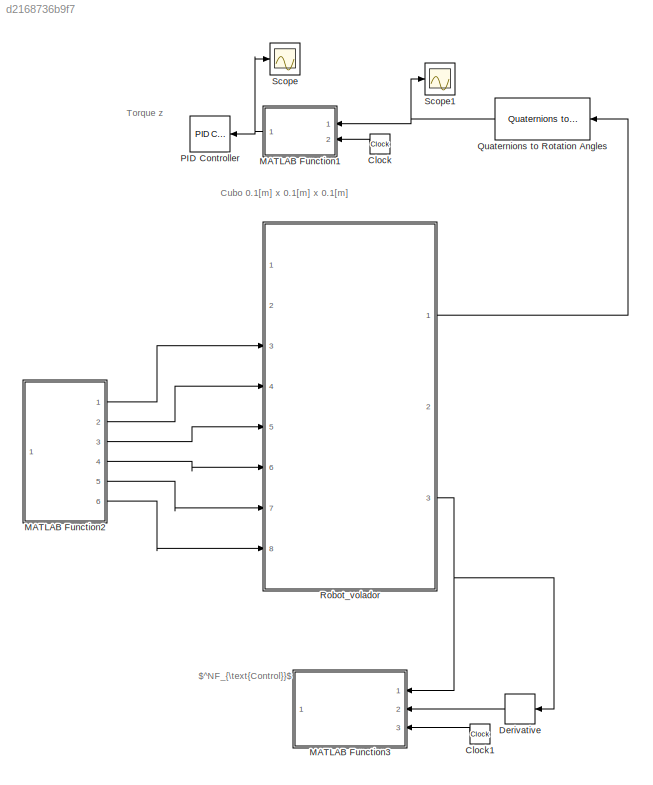
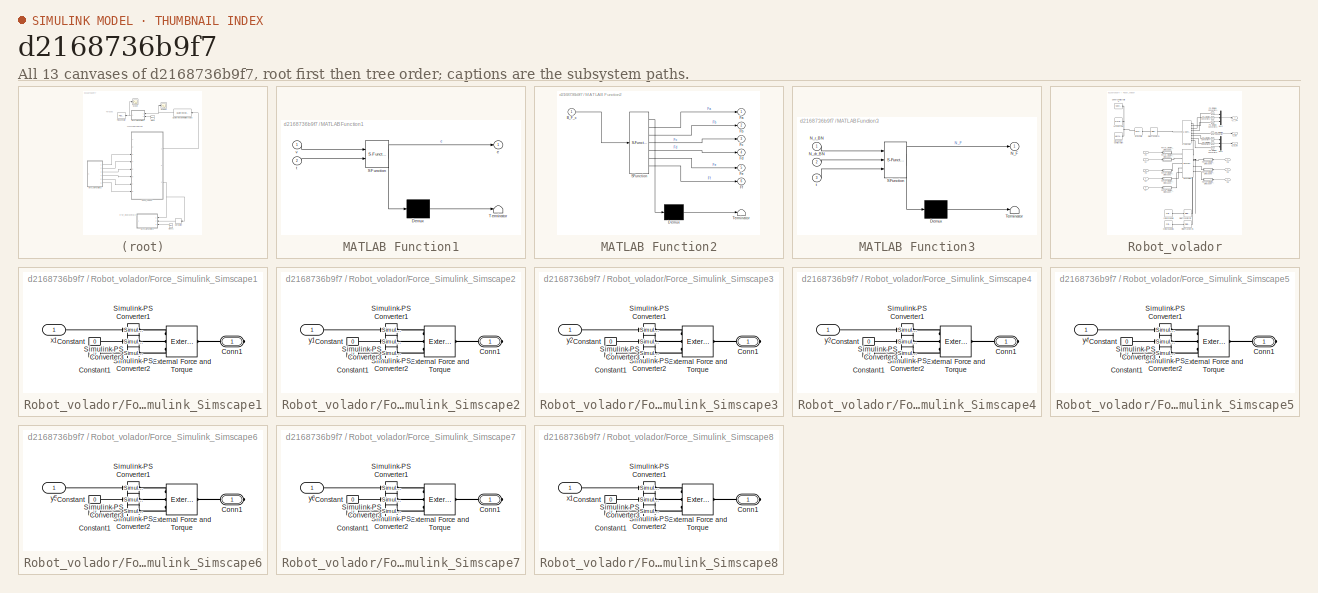
[diagram: thumbnail index - all 13 canvases of the model, root first then tree order]
MODEL slx_d2168736b9f7
KIND model
CONFIG AbsTol = 1e-3
CONFIG EnableMultiTasking = on
CONFIG FixedStep = 0.001
CONFIG MaxStep = auto
CONFIG MinStep = auto
CONFIG RelTol = 1e-3
CONFIG SampleTimeConstraint = Unconstrained
CONFIG SolverName = ode4
CONFIG StartTime = 0.0
CONFIG StopTime = 30
BLOCK [Clock] Clock
BLOCK [Clock] Clock1
BLOCK [Derivative] Derivative
BLOCK [SubSystem] MATLAB Function1
  ErrorFcn = Stateflow.Translate.translate
  PermitHierarchicalResolution = ExplicitOnly
  Ports = [2, 1]
  RequestExecContextInheritance = off
  SFBlockType = MATLAB Function
  TreatAsAtomicUnit = on
BLOCK [Demux] MATLAB Function1/ Demux 
  Outputs = 1
  Ports = [1, 1]
BLOCK [S-Function] MATLAB Function1/ SFunction 
  EnableBusSupport = on
  FunctionName = sf_sfun
  PortCounts = [2 2]
  Ports = [2, 2]
  SFcnIsStateOwnerBlock = off
  SFunctionDeploymentMode = off
  Tag = Stateflow S-Function 1
BLOCK [Terminator] MATLAB Function1/ Terminator 
BLOCK [Outport] MATLAB Function1/e
BLOCK [Inport] MATLAB Function1/t
  Port = 2
BLOCK [Inport] MATLAB Function1/v
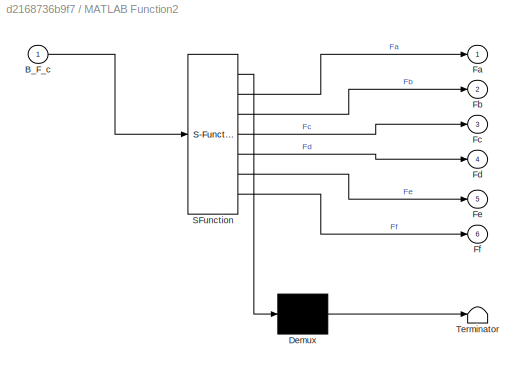
BLOCK [SubSystem] MATLAB Function2
  ErrorFcn = Stateflow.Translate.translate
  PermitHierarchicalResolution = ExplicitOnly
  Ports = [1, 6]
  RequestExecContextInheritance = off
  SFBlockType = MATLAB Function
  TreatAsAtomicUnit = on
BLOCK [Demux] MATLAB Function2/ Demux 
  Outputs = 1
  Ports = [1, 1]
BLOCK [S-Function] MATLAB Function2/ SFunction 
  EnableBusSupport = on
  FunctionName = sf_sfun
  PortCounts = [1 7]
  Ports = [1, 7]
  SFcnIsStateOwnerBlock = off
  SFunctionDeploymentMode = off
  Tag = Stateflow S-Function 3
BLOCK [Terminator] MATLAB Function2/ Terminator 
BLOCK [Inport] MATLAB Function2/B_F_c
BLOCK [Outport] MATLAB Function2/Fa
BLOCK [Outport] MATLAB Function2/Fb
  Port = 2
BLOCK [Outport] MATLAB Function2/Fc
  Port = 3
BLOCK [Outport] MATLAB Function2/Fd
  Port = 4
BLOCK [Outport] MATLAB Function2/Fe
  Port = 5
BLOCK [Outport] MATLAB Function2/Ff
  Port = 6
BLOCK [SubSystem] MATLAB Function3
  ErrorFcn = Stateflow.Translate.translate
  PermitHierarchicalResolution = ExplicitOnly
  Ports = [3, 1]
  RequestExecContextInheritance = off
  SFBlockType = MATLAB Function
  TreatAsAtomicUnit = on
BLOCK [Demux] MATLAB Function3/ Demux 
  Outputs = 1
  Ports = [1, 1]
BLOCK [S-Function] MATLAB Function3/ SFunction 
  EnableBusSupport = on
  FunctionName = sf_sfun
  PortCounts = [3 2]
  Ports = [3, 2]
  SFcnIsStateOwnerBlock = off
  SFunctionDeploymentMode = off
  Tag = Stateflow S-Function 4
BLOCK [Terminator] MATLAB Function3/ Terminator 
BLOCK [Outport] MATLAB Function3/N_F
BLOCK [Inport] MATLAB Function3/N_dr_BN
  Port = 2
BLOCK [Inport] MATLAB Function3/N_r_BN
BLOCK [Inport] MATLAB Function3/t
  Port = 3
BLOCK [Reference] PID Controller  REF=slpidlib/PID Controller
  Ports = [1, 1]
  SourceBlock = slpidlib/PID Controller
  SourceProductBaseCode = SL
  SourceType = PID 1dof
BLOCK [Reference] Quaternions to Rotation Angles  REF=sharedtransform/Quaternions to Rotation Angles
  AttributesFormatString = Rotation Order: %<rotationOrder>
  Ports = [1, 1]
  SourceBlock = sharedtransform/Quaternions to Rotation Angles
  SourceProductBaseCode = AE,PW,DR,MT,VE
  SourceType = Quat2Ang
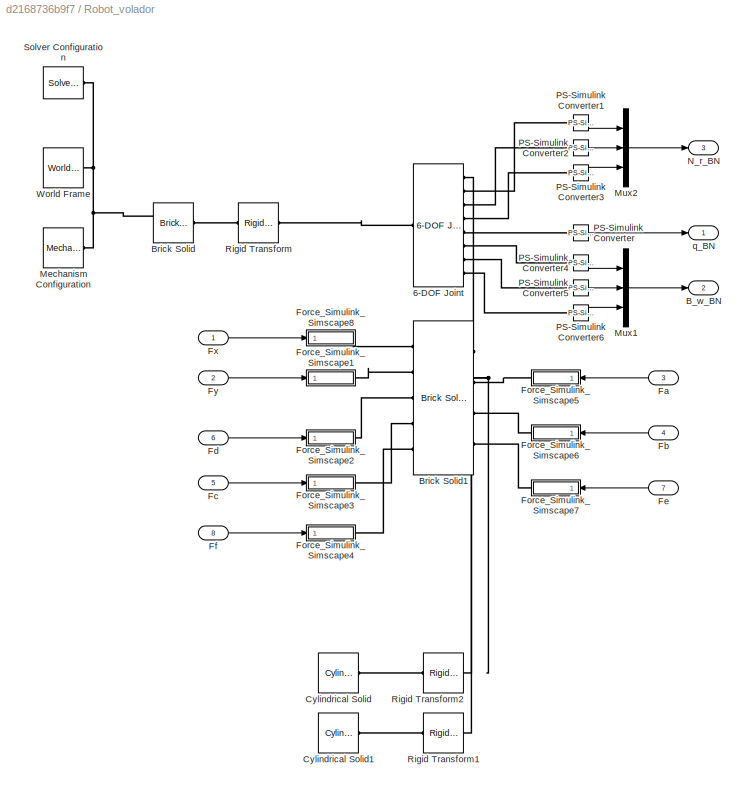
BLOCK [SubSystem] Robot_volador
  Ports = [8, 3]
  RequestExecContextInheritance = off
BLOCK [Reference] Robot_volador/6-DOF Joint  REF=sm_lib/Joints/6-DOF Joint
  Ports = [0, 0, 0, 0, 0, 1, 8]
  SourceBlock = sm_lib/Joints/6-DOF Joint
  SourceProductBaseCode = MS
  SourceType = 6-DOF Joint
BLOCK [Outport] Robot_volador/B_w_BN
  Port = 2
BLOCK [Reference] Robot_volador/Brick Solid  REF=sm_lib/Body Elements/Brick Solid
  Ports = [0, 0, 0, 0, 0, 2, 1]
  SourceBlock = sm_lib/Body Elements/Brick Solid
  SourceProductBaseCode = MS
  SourceType = Brick Solid
BLOCK [Reference] Robot_volador/Brick Solid1  REF=sm_lib/Body Elements/Brick Solid
  Ports = [0, 0, 0, 0, 0, 5, 4]
  SourceBlock = sm_lib/Body Elements/Brick Solid
  SourceProductBaseCode = MS
  SourceType = Brick Solid
BLOCK [Reference] Robot_volador/Cylindrical Solid  REF=sm_lib/Body Elements/Cylindrical Solid
  Ports = [0, 0, 0, 0, 0, 1, 1]
  SourceBlock = sm_lib/Body Elements/Cylindrical Solid
  SourceProductBaseCode = MS
  SourceType = Cylindrical Solid
BLOCK [Reference] Robot_volador/Cylindrical Solid1  REF=sm_lib/Body Elements/Cylindrical Solid
  Ports = [0, 0, 0, 0, 0, 1, 1]
  SourceBlock = sm_lib/Body Elements/Cylindrical Solid
  SourceProductBaseCode = MS
  SourceType = Cylindrical Solid
BLOCK [Inport] Robot_volador/Fa
  Port = 3
BLOCK [Inport] Robot_volador/Fb
  Port = 4
BLOCK [Inport] Robot_volador/Fc
  Port = 5
BLOCK [Inport] Robot_volador/Fd
  Port = 6
BLOCK [Inport] Robot_volador/Fe
  Port = 7
BLOCK [Inport] Robot_volador/Ff
  Port = 8
BLOCK [SubSystem] Robot_volador/Force_Simulink_Simscape1
  Ports = [1, 0, 0, 0, 0, 0, 1]
  RequestExecContextInheritance = off
BLOCK [PMIOPort] Robot_volador/Force_Simulink_Simscape1/Conn1
  Side = Right
BLOCK [Constant] Robot_volador/Force_Simulink_Simscape1/Constant
  Value = 0
BLOCK [Constant] Robot_volador/Force_Simulink_Simscape1/Constant1
  Value = 0
BLOCK [Reference] Robot_volador/Force_Simulink_Simscape1/External Force and Torque  REF=sm_lib/Forces and
Torques/External Force
and Torque
  Ports = [0, 0, 0, 0, 0, 3, 1]
  SourceBlock = sm_lib/Forces and\nTorques/External Force\nand Torque
  SourceProductBaseCode = MS
  SourceType = External Force\nand Torque
BLOCK [Reference] Robot_volador/Force_Simulink_Simscape1/Simulink-PS Converter1  REF=nesl_utility/Simulink-PS
Converter
  Ports = [1, 0, 0, 0, 0, 0, 1]
  SourceBlock = nesl_utility/Simulink-PS\nConverter
  SourceProductBaseCode = SS,PW,VE
  SourceType = Simulink-PS\nConverter
BLOCK [Reference] Robot_volador/Force_Simulink_Simscape1/Simulink-PS Converter2  REF=nesl_utility/Simulink-PS
Converter
  Ports = [1, 0, 0, 0, 0, 0, 1]
  SourceBlock = nesl_utility/Simulink-PS\nConverter
  SourceProductBaseCode = SS,PW,VE
  SourceType = Simulink-PS\nConverter
BLOCK [Reference] Robot_volador/Force_Simulink_Simscape1/Simulink-PS Converter3  REF=nesl_utility/Simulink-PS
Converter
  Ports = [1, 0, 0, 0, 0, 0, 1]
  SourceBlock = nesl_utility/Simulink-PS\nConverter
  SourceProductBaseCode = SS,PW,VE
  SourceType = Simulink-PS\nConverter
BLOCK [Inport] Robot_volador/Force_Simulink_Simscape1/x1
BLOCK [SubSystem] Robot_volador/Force_Simulink_Simscape2
  Ports = [1, 0, 0, 0, 0, 0, 1]
  RequestExecContextInheritance = off
BLOCK [PMIOPort] Robot_volador/Force_Simulink_Simscape2/Conn1
  Side = Right
BLOCK [Constant] Robot_volador/Force_Simulink_Simscape2/Constant
  Value = 0
BLOCK [Constant] Robot_volador/Force_Simulink_Simscape2/Constant1
  Value = 0
BLOCK [Reference] Robot_volador/Force_Simulink_Simscape2/External Force and Torque  REF=sm_lib/Forces and
Torques/External Force
and Torque
  Ports = [0, 0, 0, 0, 0, 3, 1]
  SourceBlock = sm_lib/Forces and\nTorques/External Force\nand Torque
  SourceProductBaseCode = MS
  SourceType = External Force\nand Torque
BLOCK [Reference] Robot_volador/Force_Simulink_Simscape2/Simulink-PS Converter1  REF=nesl_utility/Simulink-PS
Converter
  Ports = [1, 0, 0, 0, 0, 0, 1]
  SourceBlock = nesl_utility/Simulink-PS\nConverter
  SourceProductBaseCode = SS,PW,VE
  SourceType = Simulink-PS\nConverter
BLOCK [Reference] Robot_volador/Force_Simulink_Simscape2/Simulink-PS Converter2  REF=nesl_utility/Simulink-PS
Converter
  Ports = [1, 0, 0, 0, 0, 0, 1]
  SourceBlock = nesl_utility/Simulink-PS\nConverter
  SourceProductBaseCode = SS,PW,VE
  SourceType = Simulink-PS\nConverter
BLOCK [Reference] Robot_volador/Force_Simulink_Simscape2/Simulink-PS Converter3  REF=nesl_utility/Simulink-PS
Converter
  Ports = [1, 0, 0, 0, 0, 0, 1]
  SourceBlock = nesl_utility/Simulink-PS\nConverter
  SourceProductBaseCode = SS,PW,VE
  SourceType = Simulink-PS\nConverter
BLOCK [Inport] Robot_volador/Force_Simulink_Simscape2/y1
BLOCK [SubSystem] Robot_volador/Force_Simulink_Simscape3
  Ports = [1, 0, 0, 0, 0, 0, 1]
  RequestExecContextInheritance = off
BLOCK [PMIOPort] Robot_volador/Force_Simulink_Simscape3/Conn1
  Side = Right
BLOCK [Constant] Robot_volador/Force_Simulink_Simscape3/Constant
  Value = 0
BLOCK [Constant] Robot_volador/Force_Simulink_Simscape3/Constant1
  Value = 0
BLOCK [Reference] Robot_volador/Force_Simulink_Simscape3/External Force and Torque  REF=sm_lib/Forces and
Torques/External Force
and Torque
  Ports = [0, 0, 0, 0, 0, 3, 1]
  SourceBlock = sm_lib/Forces and\nTorques/External Force\nand Torque
  SourceProductBaseCode = MS
  SourceType = External Force\nand Torque
BLOCK [Reference] Robot_volador/Force_Simulink_Simscape3/Simulink-PS Converter1  REF=nesl_utility/Simulink-PS
Converter
  Ports = [1, 0, 0, 0, 0, 0, 1]
  SourceBlock = nesl_utility/Simulink-PS\nConverter
  SourceProductBaseCode = SS,PW,VE
  SourceType = Simulink-PS\nConverter
BLOCK [Reference] Robot_volador/Force_Simulink_Simscape3/Simulink-PS Converter2  REF=nesl_utility/Simulink-PS
Converter
  Ports = [1, 0, 0, 0, 0, 0, 1]
  SourceBlock = nesl_utility/Simulink-PS\nConverter
  SourceProductBaseCode = SS,PW,VE
  SourceType = Simulink-PS\nConverter
BLOCK [Reference] Robot_volador/Force_Simulink_Simscape3/Simulink-PS Converter3  REF=nesl_utility/Simulink-PS
Converter
  Ports = [1, 0, 0, 0, 0, 0, 1]
  SourceBlock = nesl_utility/Simulink-PS\nConverter
  SourceProductBaseCode = SS,PW,VE
  SourceType = Simulink-PS\nConverter
BLOCK [Inport] Robot_volador/Force_Simulink_Simscape3/y2
BLOCK [SubSystem] Robot_volador/Force_Simulink_Simscape4
  Ports = [1, 0, 0, 0, 0, 0, 1]
  RequestExecContextInheritance = off
BLOCK [PMIOPort] Robot_volador/Force_Simulink_Simscape4/Conn1
  Side = Right
BLOCK [Constant] Robot_volador/Force_Simulink_Simscape4/Constant
  Value = 0
BLOCK [Constant] Robot_volador/Force_Simulink_Simscape4/Constant1
  Value = 0
BLOCK [Reference] Robot_volador/Force_Simulink_Simscape4/External Force and Torque  REF=sm_lib/Forces and
Torques/External Force
and Torque
  Ports = [0, 0, 0, 0, 0, 3, 1]
  SourceBlock = sm_lib/Forces and\nTorques/External Force\nand Torque
  SourceProductBaseCode = MS
  SourceType = External Force\nand Torque
BLOCK [Reference] Robot_volador/Force_Simulink_Simscape4/Simulink-PS Converter1  REF=nesl_utility/Simulink-PS
Converter
  Ports = [1, 0, 0, 0, 0, 0, 1]
  SourceBlock = nesl_utility/Simulink-PS\nConverter
  SourceProductBaseCode = SS,PW,VE
  SourceType = Simulink-PS\nConverter
BLOCK [Reference] Robot_volador/Force_Simulink_Simscape4/Simulink-PS Converter2  REF=nesl_utility/Simulink-PS
Converter
  Ports = [1, 0, 0, 0, 0, 0, 1]
  SourceBlock = nesl_utility/Simulink-PS\nConverter
  SourceProductBaseCode = SS,PW,VE
  SourceType = Simulink-PS\nConverter
BLOCK [Reference] Robot_volador/Force_Simulink_Simscape4/Simulink-PS Converter3  REF=nesl_utility/Simulink-PS
Converter
  Ports = [1, 0, 0, 0, 0, 0, 1]
  SourceBlock = nesl_utility/Simulink-PS\nConverter
  SourceProductBaseCode = SS,PW,VE
  SourceType = Simulink-PS\nConverter
BLOCK [Inport] Robot_volador/Force_Simulink_Simscape4/y3
BLOCK [SubSystem] Robot_volador/Force_Simulink_Simscape5
  Ports = [1, 0, 0, 0, 0, 0, 1]
  RequestExecContextInheritance = off
BLOCK [PMIOPort] Robot_volador/Force_Simulink_Simscape5/Conn1
  Side = Right
BLOCK [Constant] Robot_volador/Force_Simulink_Simscape5/Constant
  Value = 0
BLOCK [Constant] Robot_volador/Force_Simulink_Simscape5/Constant1
  Value = 0
BLOCK [Reference] Robot_volador/Force_Simulink_Simscape5/External Force and Torque  REF=sm_lib/Forces and
Torques/External Force
and Torque
  Ports = [0, 0, 0, 0, 0, 3, 1]
  SourceBlock = sm_lib/Forces and\nTorques/External Force\nand Torque
  SourceProductBaseCode = MS
  SourceType = External Force\nand Torque
BLOCK [Reference] Robot_volador/Force_Simulink_Simscape5/Simulink-PS Converter1  REF=nesl_utility/Simulink-PS
Converter
  Ports = [1, 0, 0, 0, 0, 0, 1]
  SourceBlock = nesl_utility/Simulink-PS\nConverter
  SourceProductBaseCode = SS,PW,VE
  SourceType = Simulink-PS\nConverter
BLOCK [Reference] Robot_volador/Force_Simulink_Simscape5/Simulink-PS Converter2  REF=nesl_utility/Simulink-PS
Converter
  Ports = [1, 0, 0, 0, 0, 0, 1]
  SourceBlock = nesl_utility/Simulink-PS\nConverter
  SourceProductBaseCode = SS,PW,VE
  SourceType = Simulink-PS\nConverter
BLOCK [Reference] Robot_volador/Force_Simulink_Simscape5/Simulink-PS Converter3  REF=nesl_utility/Simulink-PS
Converter
  Ports = [1, 0, 0, 0, 0, 0, 1]
  SourceBlock = nesl_utility/Simulink-PS\nConverter
  SourceProductBaseCode = SS,PW,VE
  SourceType = Simulink-PS\nConverter
BLOCK [Inport] Robot_volador/Force_Simulink_Simscape5/y4
BLOCK [SubSystem] Robot_volador/Force_Simulink_Simscape6
  Ports = [1, 0, 0, 0, 0, 0, 1]
  RequestExecContextInheritance = off
BLOCK [PMIOPort] Robot_volador/Force_Simulink_Simscape6/Conn1
  Side = Right
BLOCK [Constant] Robot_volador/Force_Simulink_Simscape6/Constant
  Value = 0
BLOCK [Constant] Robot_volador/Force_Simulink_Simscape6/Constant1
  Value = 0
BLOCK [Reference] Robot_volador/Force_Simulink_Simscape6/External Force and Torque  REF=sm_lib/Forces and
Torques/External Force
and Torque
  Ports = [0, 0, 0, 0, 0, 3, 1]
  SourceBlock = sm_lib/Forces and\nTorques/External Force\nand Torque
  SourceProductBaseCode = MS
  SourceType = External Force\nand Torque
BLOCK [Reference] Robot_volador/Force_Simulink_Simscape6/Simulink-PS Converter1  REF=nesl_utility/Simulink-PS
Converter
  Ports = [1, 0, 0, 0, 0, 0, 1]
  SourceBlock = nesl_utility/Simulink-PS\nConverter
  SourceProductBaseCode = SS,PW,VE
  SourceType = Simulink-PS\nConverter
BLOCK [Reference] Robot_volador/Force_Simulink_Simscape6/Simulink-PS Converter2  REF=nesl_utility/Simulink-PS
Converter
  Ports = [1, 0, 0, 0, 0, 0, 1]
  SourceBlock = nesl_utility/Simulink-PS\nConverter
  SourceProductBaseCode = SS,PW,VE
  SourceType = Simulink-PS\nConverter
BLOCK [Reference] Robot_volador/Force_Simulink_Simscape6/Simulink-PS Converter3  REF=nesl_utility/Simulink-PS
Converter
  Ports = [1, 0, 0, 0, 0, 0, 1]
  SourceBlock = nesl_utility/Simulink-PS\nConverter
  SourceProductBaseCode = SS,PW,VE
  SourceType = Simulink-PS\nConverter
BLOCK [Inport] Robot_volador/Force_Simulink_Simscape6/y5
BLOCK [SubSystem] Robot_volador/Force_Simulink_Simscape7
  Ports = [1, 0, 0, 0, 0, 0, 1]
  RequestExecContextInheritance = off
BLOCK [PMIOPort] Robot_volador/Force_Simulink_Simscape7/Conn1
  Side = Right
BLOCK [Constant] Robot_volador/Force_Simulink_Simscape7/Constant
  Value = 0
BLOCK [Constant] Robot_volador/Force_Simulink_Simscape7/Constant1
  Value = 0
BLOCK [Reference] Robot_volador/Force_Simulink_Simscape7/External Force and Torque  REF=sm_lib/Forces and
Torques/External Force
and Torque
  Ports = [0, 0, 0, 0, 0, 3, 1]
  SourceBlock = sm_lib/Forces and\nTorques/External Force\nand Torque
  SourceProductBaseCode = MS
  SourceType = External Force\nand Torque
BLOCK [Reference] Robot_volador/Force_Simulink_Simscape7/Simulink-PS Converter1  REF=nesl_utility/Simulink-PS
Converter
  Ports = [1, 0, 0, 0, 0, 0, 1]
  SourceBlock = nesl_utility/Simulink-PS\nConverter
  SourceProductBaseCode = SS,PW,VE
  SourceType = Simulink-PS\nConverter
BLOCK [Reference] Robot_volador/Force_Simulink_Simscape7/Simulink-PS Converter2  REF=nesl_utility/Simulink-PS
Converter
  Ports = [1, 0, 0, 0, 0, 0, 1]
  SourceBlock = nesl_utility/Simulink-PS\nConverter
  SourceProductBaseCode = SS,PW,VE
  SourceType = Simulink-PS\nConverter
BLOCK [Reference] Robot_volador/Force_Simulink_Simscape7/Simulink-PS Converter3  REF=nesl_utility/Simulink-PS
Converter
  Ports = [1, 0, 0, 0, 0, 0, 1]
  SourceBlock = nesl_utility/Simulink-PS\nConverter
  SourceProductBaseCode = SS,PW,VE
  SourceType = Simulink-PS\nConverter
BLOCK [Inport] Robot_volador/Force_Simulink_Simscape7/y6
BLOCK [SubSystem] Robot_volador/Force_Simulink_Simscape8
  Ports = [1, 0, 0, 0, 0, 0, 1]
  RequestExecContextInheritance = off
BLOCK [PMIOPort] Robot_volador/Force_Simulink_Simscape8/Conn1
  Side = Right
BLOCK [Constant] Robot_volador/Force_Simulink_Simscape8/Constant
  Value = 0
BLOCK [Constant] Robot_volador/Force_Simulink_Simscape8/Constant1
  Value = 0
BLOCK [Reference] Robot_volador/Force_Simulink_Simscape8/External Force and Torque  REF=sm_lib/Forces and
Torques/External Force
and Torque
  Ports = [0, 0, 0, 0, 0, 3, 1]
  SourceBlock = sm_lib/Forces and\nTorques/External Force\nand Torque
  SourceProductBaseCode = MS
  SourceType = External Force\nand Torque
BLOCK [Reference] Robot_volador/Force_Simulink_Simscape8/Simulink-PS Converter1  REF=nesl_utility/Simulink-PS
Converter
  Ports = [1, 0, 0, 0, 0, 0, 1]
  SourceBlock = nesl_utility/Simulink-PS\nConverter
  SourceProductBaseCode = SS,PW,VE
  SourceType = Simulink-PS\nConverter
BLOCK [Reference] Robot_volador/Force_Simulink_Simscape8/Simulink-PS Converter2  REF=nesl_utility/Simulink-PS
Converter
  Ports = [1, 0, 0, 0, 0, 0, 1]
  SourceBlock = nesl_utility/Simulink-PS\nConverter
  SourceProductBaseCode = SS,PW,VE
  SourceType = Simulink-PS\nConverter
BLOCK [Reference] Robot_volador/Force_Simulink_Simscape8/Simulink-PS Converter3  REF=nesl_utility/Simulink-PS
Converter
  Ports = [1, 0, 0, 0, 0, 0, 1]
  SourceBlock = nesl_utility/Simulink-PS\nConverter
  SourceProductBaseCode = SS,PW,VE
  SourceType = Simulink-PS\nConverter
BLOCK [Inport] Robot_volador/Force_Simulink_Simscape8/x1
BLOCK [Inport] Robot_volador/Fx
BLOCK [Inport] Robot_volador/Fy
  Port = 2
BLOCK [Reference] Robot_volador/Mechanism Configuration  REF=sm_lib/Utilities/Mechanism
Configuration
  Ports = [0, 0, 0, 0, 0, 0, 1]
  SourceBlock = sm_lib/Utilities/Mechanism\nConfiguration
  SourceProductBaseCode = MS
  SourceType = Mechanism\nConfiguration
BLOCK [Mux] Robot_volador/Mux1
  DisplayOption = bar
  Inputs = 3
  Ports = [3, 1]
BLOCK [Mux] Robot_volador/Mux2
  DisplayOption = bar
  Inputs = 3
  Ports = [3, 1]
BLOCK [Outport] Robot_volador/N_r_BN
  Port = 3
BLOCK [Reference] Robot_volador/PS-Simulink Converter  REF=nesl_utility/PS-Simulink
Converter
  Ports = [0, 1, 0, 0, 0, 1]
  SourceBlock = nesl_utility/PS-Simulink\nConverter
  SourceProductBaseCode = SS,PW,VE
  SourceType = PS-Simulink\nConverter
BLOCK [Reference] Robot_volador/PS-Simulink Converter1  REF=nesl_utility/PS-Simulink
Converter
  Ports = [0, 1, 0, 0, 0, 1]
  SourceBlock = nesl_utility/PS-Simulink\nConverter
  SourceProductBaseCode = SS,PW,VE
  SourceType = PS-Simulink\nConverter
BLOCK [Reference] Robot_volador/PS-Simulink Converter2  REF=nesl_utility/PS-Simulink
Converter
  Ports = [0, 1, 0, 0, 0, 1]
  SourceBlock = nesl_utility/PS-Simulink\nConverter
  SourceProductBaseCode = SS,PW,VE
  SourceType = PS-Simulink\nConverter
BLOCK [Reference] Robot_volador/PS-Simulink Converter3  REF=nesl_utility/PS-Simulink
Converter
  Ports = [0, 1, 0, 0, 0, 1]
  SourceBlock = nesl_utility/PS-Simulink\nConverter
  SourceProductBaseCode = SS,PW,VE
  SourceType = PS-Simulink\nConverter
BLOCK [Reference] Robot_volador/PS-Simulink Converter4  REF=nesl_utility/PS-Simulink
Converter
  Ports = [0, 1, 0, 0, 0, 1]
  SourceBlock = nesl_utility/PS-Simulink\nConverter
  SourceProductBaseCode = SS,PW,VE
  SourceType = PS-Simulink\nConverter
BLOCK [Reference] Robot_volador/PS-Simulink Converter5  REF=nesl_utility/PS-Simulink
Converter
  Ports = [0, 1, 0, 0, 0, 1]
  SourceBlock = nesl_utility/PS-Simulink\nConverter
  SourceProductBaseCode = SS,PW,VE
  SourceType = PS-Simulink\nConverter
BLOCK [Reference] Robot_volador/PS-Simulink Converter6  REF=nesl_utility/PS-Simulink
Converter
  Ports = [0, 1, 0, 0, 0, 1]
  SourceBlock = nesl_utility/PS-Simulink\nConverter
  SourceProductBaseCode = SS,PW,VE
  SourceType = PS-Simulink\nConverter
BLOCK [Reference] Robot_volador/Rigid Transform  REF=sm_lib/Frames and
Transforms/Rigid
Transform
  Ports = [0, 0, 0, 0, 0, 1, 1]
  SourceBlock = sm_lib/Frames and\nTransforms/Rigid\nTransform
  SourceProductBaseCode = MS
  SourceType = Rigid\nTransform
BLOCK [Reference] Robot_volador/Rigid Transform1  REF=sm_lib/Frames and
Transforms/Rigid
Transform
  Ports = [0, 0, 0, 0, 0, 1, 1]
  SourceBlock = sm_lib/Frames and\nTransforms/Rigid\nTransform
  SourceProductBaseCode = MS
  SourceType = Rigid\nTransform
BLOCK [Reference] Robot_volador/Rigid Transform2  REF=sm_lib/Frames and
Transforms/Rigid
Transform
  Ports = [0, 0, 0, 0, 0, 1, 1]
  SourceBlock = sm_lib/Frames and\nTransforms/Rigid\nTransform
  SourceProductBaseCode = MS
  SourceType = Rigid\nTransform
BLOCK [Reference] Robot_volador/Solver Configuration  REF=nesl_utility/Solver
Configuration
  Ports = [0, 0, 0, 0, 0, 0, 1]
  SourceBlock = nesl_utility/Solver\nConfiguration
  SourceProductBaseCode = SS,PW,VE
  SourceType = Solver\nConfiguration
BLOCK [Reference] Robot_volador/World Frame  REF=sm_lib/Frames and
Transforms/World Frame
  Ports = [0, 0, 0, 0, 0, 0, 1]
  SourceBlock = sm_lib/Frames and\nTransforms/World Frame
  SourceProductBaseCode = MS
  SourceType = World Frame
BLOCK [Outport] Robot_volador/q_BN
BLOCK [Scope] Scope
  Floating = off
  NumInputPorts = 1
  Ports = [1]
  ScopeSpecificationString = Simulink.scopes.TimeScopeBlockCfg('CurrentConfiguration', extmgr.ConfigurationSet(extmgr.Configuration('Core','General UI',true),extmgr.Configuration('Core','Source UI',true),extmgr.Configuration('Sources','WiredSimulink',true),extmgr.Configuration('Visuals','Time Domain',true,'SerializedDisplays',{struct('MinYLimReal','-3.92857','MaxYLimReal','3.92718','YLabelReal','','MinYLimMag','0.00000','MaxY...<+1336ch>
BLOCK [Scope] Scope1
  Floating = off
  NumInputPorts = 1
  Ports = [1]
  ScopeSpecificationString = Simulink.scopes.TimeScopeBlockCfg('CurrentConfiguration', extmgr.ConfigurationSet(extmgr.Configuration('Core','General UI',true),extmgr.Configuration('Core','Source UI',true),extmgr.Configuration('Sources','WiredSimulink',true,'DataLoggingVariableName','ScopeData1'),extmgr.Configuration('Visuals','Time Domain',true,'SerializedDisplays',{struct('MinYLimReal','-2.31549','MaxYLimReal','2.31548','YLab...<+1461ch>
ANNOTATION (root): $^NF_{\text{Control}}$
ANNOTATION (root): Cubo 0.1[m] x 0.1[m] x 0.1[m]
ANNOTATION (root): Torque z
LINE Clock1:1 -> MATLAB Function3:3
LINE Clock:1 -> MATLAB Function1:2
LINE Derivative:1 -> MATLAB Function3:2
NET MATLAB Function1:1 -> PID Controller:1, Scope:1
LINE MATLAB Function2:1 -> Robot_volador:3
LINE MATLAB Function2:2 -> Robot_volador:4
LINE MATLAB Function2:3 -> Robot_volador:5
LINE MATLAB Function2:4 -> Robot_volador:6
LINE MATLAB Function2:5 -> Robot_volador:7
LINE MATLAB Function2:6 -> Robot_volador:8
NET Quaternions to Rotation Angles:1 -> MATLAB Function1:1, Scope1:1
LINE Robot_volador/Fa:1 -> Robot_volador/Force_Simulink_Simscape5:1
LINE Robot_volador/Fb:1 -> Robot_volador/Force_Simulink_Simscape6:1
LINE Robot_volador/Fc:1 -> Robot_volador/Force_Simulink_Simscape3:1
LINE Robot_volador/Fd:1 -> Robot_volador/Force_Simulink_Simscape2:1
LINE Robot_volador/Fe:1 -> Robot_volador/Force_Simulink_Simscape7:1
LINE Robot_volador/Ff:1 -> Robot_volador/Force_Simulink_Simscape4:1
LINE Robot_volador/Force_Simulink_Simscape1/Constant1:1 -> Robot_volador/Force_Simulink_Simscape1/Simulink-PS Converter3:1
LINE Robot_volador/Force_Simulink_Simscape1/Constant:1 -> Robot_volador/Force_Simulink_Simscape1/Simulink-PS Converter2:1
LINE Robot_volador/Force_Simulink_Simscape1/x1:1 -> Robot_volador/Force_Simulink_Simscape1/Simulink-PS Converter1:1
LINE Robot_volador/Force_Simulink_Simscape2/Constant1:1 -> Robot_volador/Force_Simulink_Simscape2/Simulink-PS Converter3:1
LINE Robot_volador/Force_Simulink_Simscape2/Constant:1 -> Robot_volador/Force_Simulink_Simscape2/Simulink-PS Converter2:1
LINE Robot_volador/Force_Simulink_Simscape2/y1:1 -> Robot_volador/Force_Simulink_Simscape2/Simulink-PS Converter1:1
LINE Robot_volador/Force_Simulink_Simscape3/Constant1:1 -> Robot_volador/Force_Simulink_Simscape3/Simulink-PS Converter3:1
LINE Robot_volador/Force_Simulink_Simscape3/Constant:1 -> Robot_volador/Force_Simulink_Simscape3/Simulink-PS Converter2:1
LINE Robot_volador/Force_Simulink_Simscape3/y2:1 -> Robot_volador/Force_Simulink_Simscape3/Simulink-PS Converter1:1
LINE Robot_volador/Force_Simulink_Simscape4/Constant1:1 -> Robot_volador/Force_Simulink_Simscape4/Simulink-PS Converter3:1
LINE Robot_volador/Force_Simulink_Simscape4/Constant:1 -> Robot_volador/Force_Simulink_Simscape4/Simulink-PS Converter2:1
LINE Robot_volador/Force_Simulink_Simscape4/y3:1 -> Robot_volador/Force_Simulink_Simscape4/Simulink-PS Converter1:1
LINE Robot_volador/Force_Simulink_Simscape5/Constant1:1 -> Robot_volador/Force_Simulink_Simscape5/Simulink-PS Converter3:1
LINE Robot_volador/Force_Simulink_Simscape5/Constant:1 -> Robot_volador/Force_Simulink_Simscape5/Simulink-PS Converter2:1
LINE Robot_volador/Force_Simulink_Simscape5/y4:1 -> Robot_volador/Force_Simulink_Simscape5/Simulink-PS Converter1:1
LINE Robot_volador/Force_Simulink_Simscape6/Constant1:1 -> Robot_volador/Force_Simulink_Simscape6/Simulink-PS Converter3:1
LINE Robot_volador/Force_Simulink_Simscape6/Constant:1 -> Robot_volador/Force_Simulink_Simscape6/Simulink-PS Converter2:1
LINE Robot_volador/Force_Simulink_Simscape6/y5:1 -> Robot_volador/Force_Simulink_Simscape6/Simulink-PS Converter1:1
LINE Robot_volador/Force_Simulink_Simscape7/Constant1:1 -> Robot_volador/Force_Simulink_Simscape7/Simulink-PS Converter3:1
LINE Robot_volador/Force_Simulink_Simscape7/Constant:1 -> Robot_volador/Force_Simulink_Simscape7/Simulink-PS Converter2:1
LINE Robot_volador/Force_Simulink_Simscape7/y6:1 -> Robot_volador/Force_Simulink_Simscape7/Simulink-PS Converter1:1
LINE Robot_volador/Force_Simulink_Simscape8/Constant1:1 -> Robot_volador/Force_Simulink_Simscape8/Simulink-PS Converter3:1
LINE Robot_volador/Force_Simulink_Simscape8/Constant:1 -> Robot_volador/Force_Simulink_Simscape8/Simulink-PS Converter2:1
LINE Robot_volador/Force_Simulink_Simscape8/x1:1 -> Robot_volador/Force_Simulink_Simscape8/Simulink-PS Converter1:1
LINE Robot_volador/Fx:1 -> Robot_volador/Force_Simulink_Simscape8:1
LINE Robot_volador/Fy:1 -> Robot_volador/Force_Simulink_Simscape1:1
LINE Robot_volador/Mux1:1 -> Robot_volador/B_w_BN:1
LINE Robot_volador/Mux2:1 -> Robot_volador/N_r_BN:1
LINE Robot_volador/PS-Simulink Converter1:1 -> Robot_volador/Mux2:1
LINE Robot_volador/PS-Simulink Converter2:1 -> Robot_volador/Mux2:2
LINE Robot_volador/PS-Simulink Converter3:1 -> Robot_volador/Mux2:3
LINE Robot_volador/PS-Simulink Converter4:1 -> Robot_volador/Mux1:1
LINE Robot_volador/PS-Simulink Converter5:1 -> Robot_volador/Mux1:2
LINE Robot_volador/PS-Simulink Converter6:1 -> Robot_volador/Mux1:3
LINE Robot_volador/PS-Simulink Converter:1 -> Robot_volador/q_BN:1
LINE Robot_volador:1 -> Quaternions to Rotation Angles:1
NET Robot_volador:3 -> Derivative:1, MATLAB Function3:1
PLINE Robot_volador/6-DOF Joint:LConn1 -- Robot_volador/Rigid Transform:RConn1
PLINE Robot_volador/6-DOF Joint:RConn1 -- Robot_volador/Brick Solid1:RConn1
PLINE Robot_volador/6-DOF Joint:RConn2 -- Robot_volador/PS-Simulink Converter1:LConn1
PLINE Robot_volador/6-DOF Joint:RConn3 -- Robot_volador/PS-Simulink Converter2:LConn1
PLINE Robot_volador/6-DOF Joint:RConn4 -- Robot_volador/PS-Simulink Converter3:LConn1
PLINE Robot_volador/6-DOF Joint:RConn5 -- Robot_volador/PS-Simulink Converter:LConn1
PLINE Robot_volador/6-DOF Joint:RConn6 -- Robot_volador/PS-Simulink Converter4:LConn1
PLINE Robot_volador/6-DOF Joint:RConn7 -- Robot_volador/PS-Simulink Converter5:LConn1
PLINE Robot_volador/6-DOF Joint:RConn8 -- Robot_volador/PS-Simulink Converter6:LConn1
PLINE Robot_volador/Brick Solid1:LConn1 -- Robot_volador/Force_Simulink_Simscape8:RConn1
PLINE Robot_volador/Brick Solid1:LConn2 -- Robot_volador/Force_Simulink_Simscape1:RConn1
PLINE Robot_volador/Brick Solid1:LConn3 -- Robot_volador/Force_Simulink_Simscape2:RConn1
PLINE Robot_volador/Brick Solid1:LConn4 -- Robot_volador/Force_Simulink_Simscape3:RConn1
PLINE Robot_volador/Brick Solid1:LConn5 -- Robot_volador/Force_Simulink_Simscape4:RConn1
PNET net1: Robot_volador/Brick Solid1:RConn2 -- Robot_volador/Force_Simulink_Simscape5:RConn1 -- Robot_volador/Rigid Transform1:RConn1 -- Robot_volador/Rigid Transform2:RConn1
PLINE Robot_volador/Brick Solid1:RConn3 -- Robot_volador/Force_Simulink_Simscape6:RConn1
PLINE Robot_volador/Brick Solid1:RConn4 -- Robot_volador/Force_Simulink_Simscape7:RConn1
PNET net2: Robot_volador/Brick Solid:LConn1 -- Robot_volador/Mechanism Configuration:RConn1 -- Robot_volador/Solver Configuration:RConn1 -- Robot_volador/World Frame:RConn1
PLINE Robot_volador/Brick Solid:RConn1 -- Robot_volador/Rigid Transform:LConn1
PLINE Robot_volador/Cylindrical Solid1:LConn1 -- Robot_volador/Rigid Transform1:LConn1
PLINE Robot_volador/Cylindrical Solid:LConn1 -- Robot_volador/Rigid Transform2:LConn1
PLINE Robot_volador/Force_Simulink_Simscape1/Conn1:RConn1 -- Robot_volador/Force_Simulink_Simscape1/External Force and Torque:RConn1
PLINE Robot_volador/Force_Simulink_Simscape1/External Force and Torque:LConn1 -- Robot_volador/Force_Simulink_Simscape1/Simulink-PS Converter1:RConn1
PLINE Robot_volador/Force_Simulink_Simscape1/External Force and Torque:LConn2 -- Robot_volador/Force_Simulink_Simscape1/Simulink-PS Converter2:RConn1
PLINE Robot_volador/Force_Simulink_Simscape1/External Force and Torque:LConn3 -- Robot_volador/Force_Simulink_Simscape1/Simulink-PS Converter3:RConn1
PLINE Robot_volador/Force_Simulink_Simscape2/Conn1:RConn1 -- Robot_volador/Force_Simulink_Simscape2/External Force and Torque:RConn1
PLINE Robot_volador/Force_Simulink_Simscape2/External Force and Torque:LConn1 -- Robot_volador/Force_Simulink_Simscape2/Simulink-PS Converter1:RConn1
PLINE Robot_volador/Force_Simulink_Simscape2/External Force and Torque:LConn2 -- Robot_volador/Force_Simulink_Simscape2/Simulink-PS Converter2:RConn1
PLINE Robot_volador/Force_Simulink_Simscape2/External Force and Torque:LConn3 -- Robot_volador/Force_Simulink_Simscape2/Simulink-PS Converter3:RConn1
PLINE Robot_volador/Force_Simulink_Simscape3/Conn1:RConn1 -- Robot_volador/Force_Simulink_Simscape3/External Force and Torque:RConn1
PLINE Robot_volador/Force_Simulink_Simscape3/External Force and Torque:LConn1 -- Robot_volador/Force_Simulink_Simscape3/Simulink-PS Converter1:RConn1
PLINE Robot_volador/Force_Simulink_Simscape3/External Force and Torque:LConn2 -- Robot_volador/Force_Simulink_Simscape3/Simulink-PS Converter2:RConn1
PLINE Robot_volador/Force_Simulink_Simscape3/External Force and Torque:LConn3 -- Robot_volador/Force_Simulink_Simscape3/Simulink-PS Converter3:RConn1
PLINE Robot_volador/Force_Simulink_Simscape4/Conn1:RConn1 -- Robot_volador/Force_Simulink_Simscape4/External Force and Torque:RConn1
PLINE Robot_volador/Force_Simulink_Simscape4/External Force and Torque:LConn1 -- Robot_volador/Force_Simulink_Simscape4/Simulink-PS Converter1:RConn1
PLINE Robot_volador/Force_Simulink_Simscape4/External Force and Torque:LConn2 -- Robot_volador/Force_Simulink_Simscape4/Simulink-PS Converter2:RConn1
PLINE Robot_volador/Force_Simulink_Simscape4/External Force and Torque:LConn3 -- Robot_volador/Force_Simulink_Simscape4/Simulink-PS Converter3:RConn1
PLINE Robot_volador/Force_Simulink_Simscape5/Conn1:RConn1 -- Robot_volador/Force_Simulink_Simscape5/External Force and Torque:RConn1
PLINE Robot_volador/Force_Simulink_Simscape5/External Force and Torque:LConn1 -- Robot_volador/Force_Simulink_Simscape5/Simulink-PS Converter1:RConn1
PLINE Robot_volador/Force_Simulink_Simscape5/External Force and Torque:LConn2 -- Robot_volador/Force_Simulink_Simscape5/Simulink-PS Converter2:RConn1
PLINE Robot_volador/Force_Simulink_Simscape5/External Force and Torque:LConn3 -- Robot_volador/Force_Simulink_Simscape5/Simulink-PS Converter3:RConn1
PLINE Robot_volador/Force_Simulink_Simscape6/Conn1:RConn1 -- Robot_volador/Force_Simulink_Simscape6/External Force and Torque:RConn1
PLINE Robot_volador/Force_Simulink_Simscape6/External Force and Torque:LConn1 -- Robot_volador/Force_Simulink_Simscape6/Simulink-PS Converter1:RConn1
PLINE Robot_volador/Force_Simulink_Simscape6/External Force and Torque:LConn2 -- Robot_volador/Force_Simulink_Simscape6/Simulink-PS Converter2:RConn1
PLINE Robot_volador/Force_Simulink_Simscape6/External Force and Torque:LConn3 -- Robot_volador/Force_Simulink_Simscape6/Simulink-PS Converter3:RConn1
PLINE Robot_volador/Force_Simulink_Simscape7/Conn1:RConn1 -- Robot_volador/Force_Simulink_Simscape7/External Force and Torque:RConn1
PLINE Robot_volador/Force_Simulink_Simscape7/External Force and Torque:LConn1 -- Robot_volador/Force_Simulink_Simscape7/Simulink-PS Converter1:RConn1
PLINE Robot_volador/Force_Simulink_Simscape7/External Force and Torque:LConn2 -- Robot_volador/Force_Simulink_Simscape7/Simulink-PS Converter2:RConn1
PLINE Robot_volador/Force_Simulink_Simscape7/External Force and Torque:LConn3 -- Robot_volador/Force_Simulink_Simscape7/Simulink-PS Converter3:RConn1
PLINE Robot_volador/Force_Simulink_Simscape8/Conn1:RConn1 -- Robot_volador/Force_Simulink_Simscape8/External Force and Torque:RConn1
PLINE Robot_volador/Force_Simulink_Simscape8/External Force and Torque:LConn1 -- Robot_volador/Force_Simulink_Simscape8/Simulink-PS Converter1:RConn1
PLINE Robot_volador/Force_Simulink_Simscape8/External Force and Torque:LConn2 -- Robot_volador/Force_Simulink_Simscape8/Simulink-PS Converter2:RConn1
PLINE Robot_volador/Force_Simulink_Simscape8/External Force and Torque:LConn3 -- Robot_volador/Force_Simulink_Simscape8/Simulink-PS Converter3:RConn1
note: NET lines group one-source signal fan-out (src -> all destinations, sorted); 1:1 wires keep LINE; PNET lines group multi-terminal physical nets as a canonical sorted terminal list (undirected conserving connections); 2-terminal nets keep the pairwise PLINE form
CHART MATLAB Function1 states=1 transitions=1
  STATE_LABEL 'eML_blk_kernel()'
  STATE_LABEL 'SCRIPT:\nfunction e = fcn(v,t)\nyaw_sp=0;\nif 0<=t && t<=5\n    yaw_sp=pi/2;\nend\nif 5<=t && t<=10\n    yaw_sp=-pi/2;\nend\nif 10<=t && t<=15\n    yaw_sp=pi/4;\nend\nif 15<=t && t<=20\n    yaw_sp=-pi/4;\nend\n\nif 20<=t && t<=30\n    yaw_sp=pi/2;\nend\nif 30<=t && t<=40\n    yaw_sp=-pi/2;\nend\nif 40<=t && t<=50\n    yaw_sp=pi/2;\nend\nif 50<=t && t<=60\n    yaw_sp=-pi/2;\nend\n\nangle=v(1);\n\ne = yaw_sp-angle;\n'
CHART MATLAB Function2 states=1 transitions=1
  STATE_LABEL 'eML_blk_kernel()'
  STATE_LABEL 'SCRIPT:\nfunction [Fa,Fb,Fc,Fd,Fe,Ff] = fcn(B_F_c)\nFa=0;\nFb=0;\nFc=0;\nFd=0;\nFe=0;\nFf=0;\nx_B_F_c=B_F_c(1,1);\ny_B_F_c=B_F_c(2,1);\nz_B_F_c=B_F_c(3,1);\n\nif x_B_F_c>0\n    Fb=x_B_F_c;\nelse\n    Fa=-x_B_F_c;\nend\n\nif y_B_F_c>0\n    Fd=y_B_F_c;\nelse\n    Fc=-y_B_F_c;\nend\n\nif z_B_F_c>0\n    Ff=z_B_F_c;\nelse\n    Fe=-z_B_F_c;\nend'
CHART MATLAB Function3 states=1 transitions=1
  STATE_LABEL 'eML_blk_kernel()'
  STATE_LABEL 'SCRIPT:\nfunction N_F = fcn(N_r_BN,N_dr_BN,t)\nN_r_sp=[0;0;0];\nif 20<=t && t<=30\nN_r_sp=[0.4;0.4;0.2];\nend\nif 30<=t && t<=40\nN_r_sp=[0.4;-0.4;-0.2];\nend\nif 40<=t && t<=50\nN_r_sp=[-0.4;0.4;0.2];\nend\nif 50<=t && t<=60\nN_r_sp=[-0.4;-0.4;-0.2];\nend\nN_F=50*(N_r_sp-N_r_BN)+100*(-N_dr_BN);\n'
CHART  states=0 transitions=0
CHART  states=0 transitions=0
CHART  states=0 transitions=0
